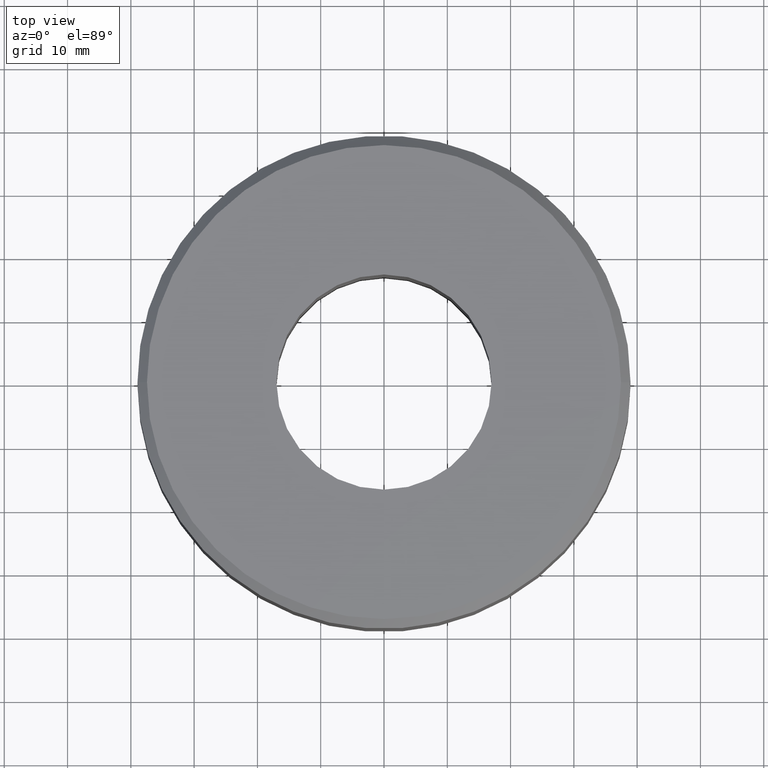
[diagram: clean part render]
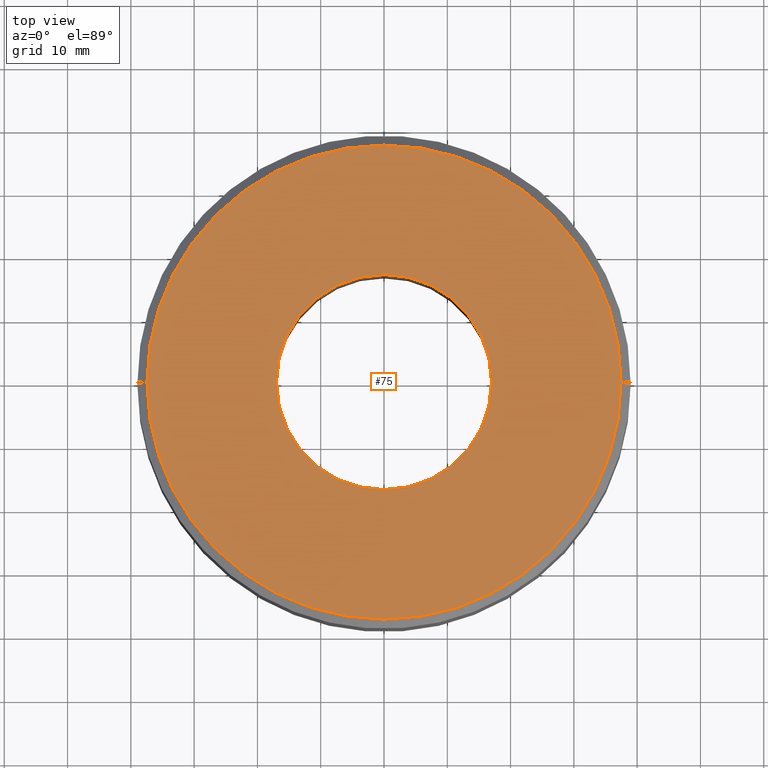
[diagram: same view with one face highlighted and labeled with its STEP entity id]
A machine part, top view. The second image highlights one B-rep face of the part: STEP entity #75.
In plain terms, the highlighted planar face has unit normal (0, 0, -1).
Its self-contained STEP definition (entity closure, byte-faithful):
#9 = DIRECTION ( 'NONE',  ( -1.000000000000000000, 0.0000000000000000000, -0.0000000000000000000 ) ) ;
#13 = ORIENTED_EDGE ( 'NONE', *, *, #337, .F. ) ;
#24 = CARTESIAN_POINT ( 'NONE',  ( 0.0000000000000000000, 0.0000000000000000000, 17.69999999999999900 ) ) ;
#40 = CARTESIAN_POINT ( 'NONE',  ( 16.99999999999999600, 0.0000000000000000000, 17.69999999999999900 ) ) ;
#51 = DIRECTION ( 'NONE',  ( 1.000000000000000000, 0.0000000000000000000, 0.0000000000000000000 ) ) ;
#54 = AXIS2_PLACEMENT_3D ( 'NONE', #118, #310, #152 ) ;
#72 = EDGE_LOOP ( 'NONE', ( #84, #342 ) ) ;
#75 = ADVANCED_FACE ( 'NONE', ( #189, #182 ), #277, .F. ) ;
#80 = DIRECTION ( 'NONE',  ( -0.0000000000000000000, -0.0000000000000000000, 1.000000000000000000 ) ) ;
#84 = ORIENTED_EDGE ( 'NONE', *, *, #175, .T. ) ;
#90 = CIRCLE ( 'NONE', #54, 16.99999999999999600 ) ;
#116 = CIRCLE ( 'NONE', #282, 37.45000000000000300 ) ;
#118 = CARTESIAN_POINT ( 'NONE',  ( 0.0000000000000000000, 0.0000000000000000000, 17.69999999999999900 ) ) ;
#152 = DIRECTION ( 'NONE',  ( 1.000000000000000000, 0.0000000000000000000, 0.0000000000000000000 ) ) ;
#161 = CARTESIAN_POINT ( 'NONE',  ( 0.0000000000000000000, 0.0000000000000000000, 17.69999999999999900 ) ) ;
#163 = EDGE_CURVE ( 'NONE', #208, #291, #90, .T. ) ;
#171 = AXIS2_PLACEMENT_3D ( 'NONE', #24, #217, #51 ) ;
#172 = CARTESIAN_POINT ( 'NONE',  ( -16.99999999999999600, 2.081899558550499900E-015, 17.69999999999999900 ) ) ;
#175 = EDGE_CURVE ( 'NONE', #321, #203, #300, .T. ) ;
#176 = DIRECTION ( 'NONE',  ( 0.0000000000000000000, 0.0000000000000000000, -1.000000000000000000 ) ) ;
#182 = FACE_OUTER_BOUND ( 'NONE', #72, .T. ) ;
#186 = DIRECTION ( 'NONE',  ( 1.000000000000000000, 0.0000000000000000000, 0.0000000000000000000 ) ) ;
#189 = FACE_BOUND ( 'NONE', #213, .T. ) ;
#200 = CIRCLE ( 'NONE', #343, 16.99999999999999600 ) ;
#203 = VERTEX_POINT ( 'NONE', #207 ) ;
#207 = CARTESIAN_POINT ( 'NONE',  ( 37.45000000000000300, 4.678150772742890200E-015, 17.69999999999999900 ) ) ;
#208 = VERTEX_POINT ( 'NONE', #40 ) ;
#213 = EDGE_LOOP ( 'NONE', ( #260, #13 ) ) ;
#217 = DIRECTION ( 'NONE',  ( -0.0000000000000000000, -0.0000000000000000000, 1.000000000000000000 ) ) ;
#246 = EDGE_CURVE ( 'NONE', #203, #321, #116, .T. ) ;
#247 = CARTESIAN_POINT ( 'NONE',  ( 0.0000000000000000000, 0.0000000000000000000, 17.69999999999999900 ) ) ;
#260 = ORIENTED_EDGE ( 'NONE', *, *, #163, .F. ) ;
#262 = AXIS2_PLACEMENT_3D ( 'NONE', #306, #176, #9 ) ;
#271 = DIRECTION ( 'NONE',  ( 1.000000000000000000, 0.0000000000000000000, 0.0000000000000000000 ) ) ;
#277 = PLANE ( 'NONE',  #262 ) ;
#282 = AXIS2_PLACEMENT_3D ( 'NONE', #161, #345, #186 ) ;
#291 = VERTEX_POINT ( 'NONE', #172 ) ;
#300 = CIRCLE ( 'NONE', #171, 37.45000000000000300 ) ;
#306 = CARTESIAN_POINT ( 'NONE',  ( 0.0000000000000000000, 16.99999999999999600, 17.69999999999999900 ) ) ;
#310 = DIRECTION ( 'NONE',  ( -0.0000000000000000000, -0.0000000000000000000, 1.000000000000000000 ) ) ;
#321 = VERTEX_POINT ( 'NONE', #323 ) ;
#323 = CARTESIAN_POINT ( 'NONE',  ( -37.45000000000000300, 0.0000000000000000000, 17.69999999999999900 ) ) ;
#337 = EDGE_CURVE ( 'NONE', #291, #208, #200, .T. ) ;
#342 = ORIENTED_EDGE ( 'NONE', *, *, #246, .T. ) ;
#343 = AXIS2_PLACEMENT_3D ( 'NONE', #247, #80, #271 ) ;
#345 = DIRECTION ( 'NONE',  ( -0.0000000000000000000, -0.0000000000000000000, 1.000000000000000000 ) ) ;